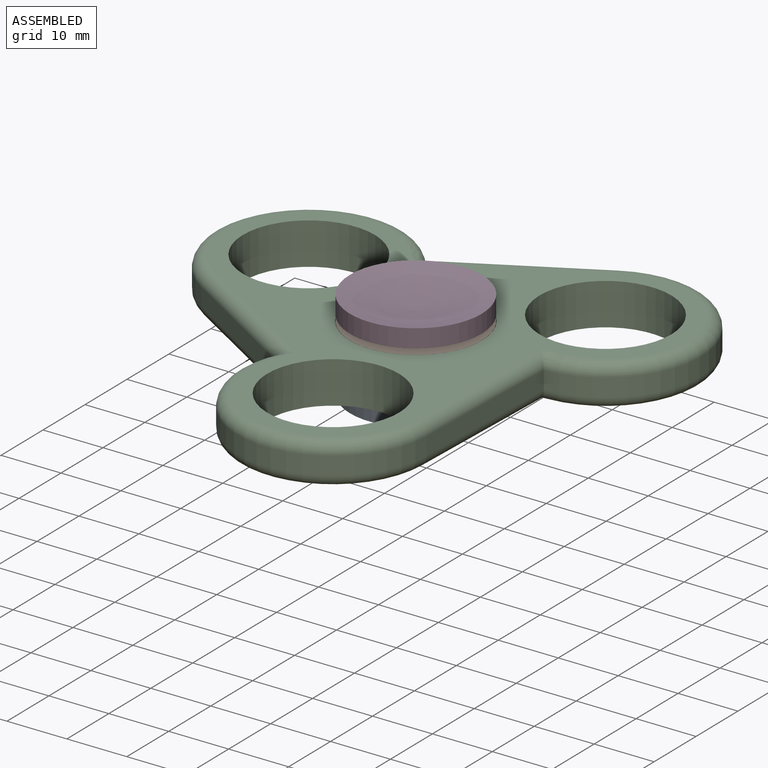
[diagram: assembled view]
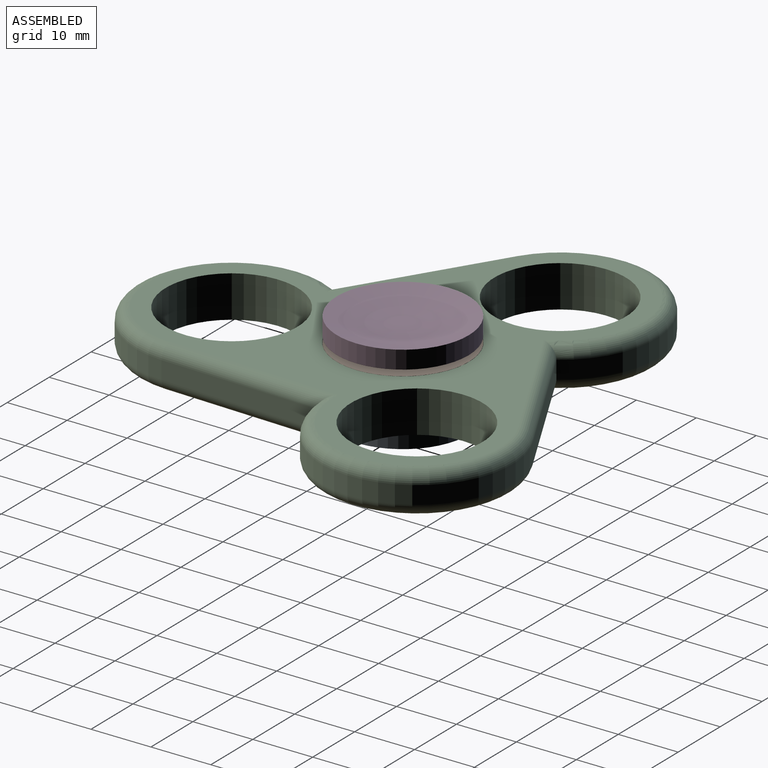
[diagram: assembled view, second angle]
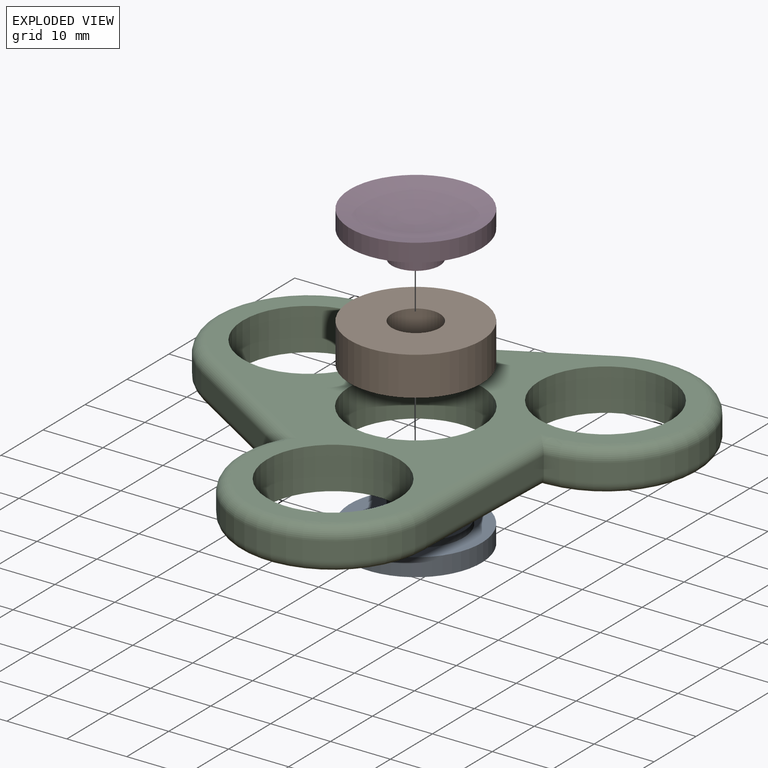
[diagram: exploded view]
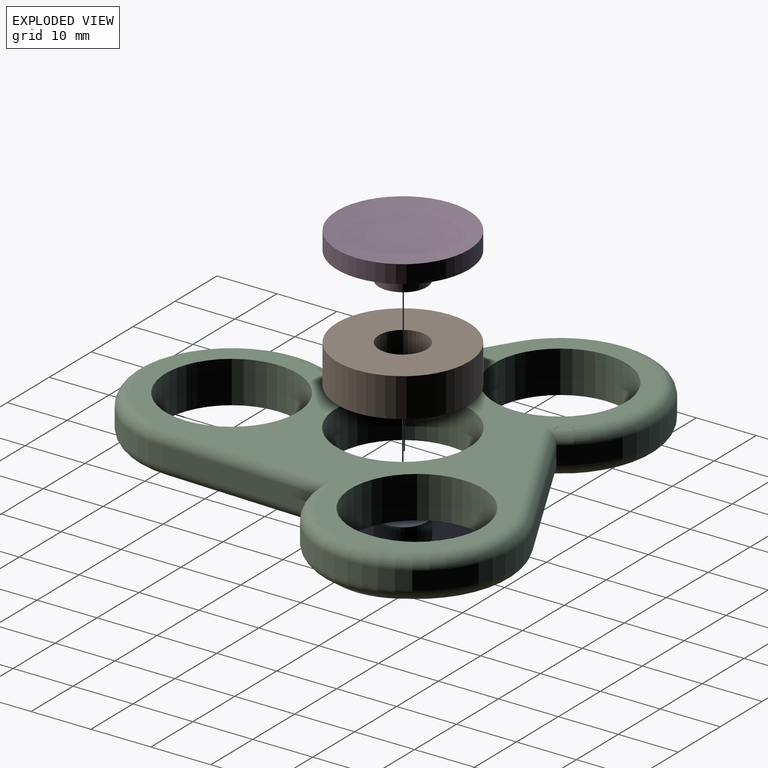
[diagram: exploded view, second angle]
ASSEMBLY  parts=4 mates=4
PART A: 7 faces, bbox 22x22x7.5 mm
  f0: cylinder r=11mm len=22mm, axis (0,0,-1), area 207.3mm2, adj f1,f6
  f1: plane 22x22mm, normal (0,0,-1), area 179.1mm2, adj f0,f2
  f2: cylinder r=8mm len=16mm, axis (0,0,-1), area 50.3mm2, adj f1,f3
  f3: plane 16x16mm, normal (0,0,-1), area 150.8mm2, adj f2,f4
  f4: cylinder r=4mm len=8mm, axis (0,0,-1), area 88mm2, adj f3,f5
  f5: plane 8x8mm, normal (0,0,-1), area 50.3mm2, adj f4
  f6: torus R=0.63mm, axis (0,0,-1), area 385.3mm2, adj f0
PART B: 4 faces, bbox 22x22x6.5 mm
  f0: cylinder r=4mm len=8mm, axis (0,0,-1), area 163.4mm2, adj f2,f3
  f1: cylinder r=11mm len=22mm, axis (0,0,-1), area 449.2mm2, adj f2,f3
  f2: plane 22x22mm, normal (0,0,1), area 329.9mm2, adj f0,f1
  f3: plane 22x22mm, normal (0,0,-1), area 329.9mm2, adj f0,f1
PART C: 24 faces, bbox 79.7x73.6x7 mm
  f0: plane 25.22x8.64mm, normal (0.32,-0.95,0), area 80mm2, adj f1,f9,f12,f18
  f1: cylinder r=16mm len=30.62mm, axis (0,0,-1), area 171.7mm2, adj f0,f2,f13,f19
  f2: plane 20.1x17.52mm, normal (0.66,0.75,0), area 80mm2, adj f1,f3,f15,f21
  f3: cylinder r=16mm len=31.7mm, axis (0,0,-1), area 171.7mm2, adj f2,f4,f17,f23
  f4: plane 26.17x5.13mm, normal (-0.98,0.19,0), area 80mm2, adj f3,f9,f16,f22
  f5: cylinder r=11.05mm len=22.1mm, axis (0,0,-1), area 486mm2, adj f10,f11
  f6: cylinder r=11mm len=22mm, axis (0,0,-1), area 483.8mm2, adj f10,f11
  f7: cylinder r=11mm len=22mm, axis (0,0,-1), area 483.8mm2, adj f10,f11
  f8: cylinder r=11mm len=22mm, axis (0,0,-1), area 483.8mm2, adj f10,f11
  f9: cylinder r=16mm len=32mm, axis (0,0,-1), area 171.7mm2, adj f0,f4,f14,f20
  f10: plane 73.03x67mm, normal (0,0,1), area 1313.3mm2, adj f5,f6,f7,f8,f12,f13,f14,f15
  f11: plane 73.03x67mm, normal (0,0,-1), area 1313.3mm2, adj f5,f6,f7,f8,f18,f19,f20,f21
  f12: cylinder r=2mm len=27.72mm, axis (-0.95,-0.32,0), area 85.9mm2, adj f0,f10,f13,f14
  f13: torus R=14mm, axis (0,0,1), area 173.7mm2, adj f1,f10,f12,f15
  f14: torus R=14mm, axis (0,0,1), area 173.7mm2, adj f9,f10,f12,f16
  f15: cylinder r=2mm len=22.88mm, axis (0.75,-0.66,0), area 85.9mm2, adj f2,f10,f13,f17
  f16: cylinder r=2mm len=28.47mm, axis (0.19,0.98,0), area 85.9mm2, adj f4,f10,f14,f17
  f17: torus R=14mm, axis (0,0,1), area 173.7mm2, adj f3,f10,f15,f16
  f18: cylinder r=2mm len=27.72mm, axis (0.95,0.32,0), area 85.9mm2, adj f0,f11,f19,f20
  f19: torus R=14mm, axis (0,0,1), area 173.7mm2, adj f1,f11,f18,f21
  f20: torus R=14mm, axis (0,0,1), area 173.7mm2, adj f9,f11,f18,f22
  f21: cylinder r=2mm len=22.88mm, axis (-0.75,0.66,0), area 85.9mm2, adj f2,f11,f19,f23
  f22: cylinder r=2mm len=28.47mm, axis (-0.19,-0.98,0), area 85.9mm2, adj f4,f11,f20,f23
  f23: torus R=14mm, axis (0,0,1), area 173.7mm2, adj f3,f11,f21,f22
PART D: same geometry as A
PLACE A rot(axis=(0.94,0.34,0),180deg) t=(17.38,13,32.74)mm
PLACE B t=(-113.62,-23.83,-10.48)mm fixed
PLACE C rot(axis=(0,0,-1),50.8deg) t=(-15.24,-13.62,-10.98)mm
PLACE D t=(26.86,-13.62,-47.69)mm
MATE planar C.f10 <-> B.f0  axis (0,0,1) through (-14.31,8.42,-3.98)mm
MATE cylindrical D.f0 <-> B.f0  axis (0,0,-1) through (-15.24,-13.62,-3.98)mm
MATE cylindrical C.f5 <-> B.f0  axis (0,0,-1) through (-15.24,-13.62,-3.98)mm
MATE cylindrical A.f0 <-> C.f5  axis (0,0,1) through (-15.24,-13.62,-10.98)mm
